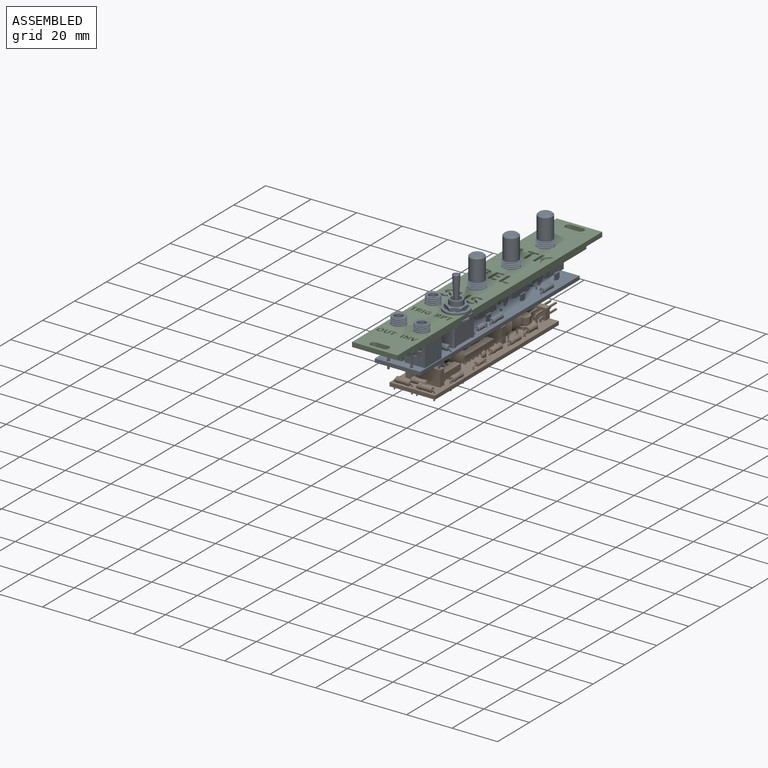
[diagram: assembled view]
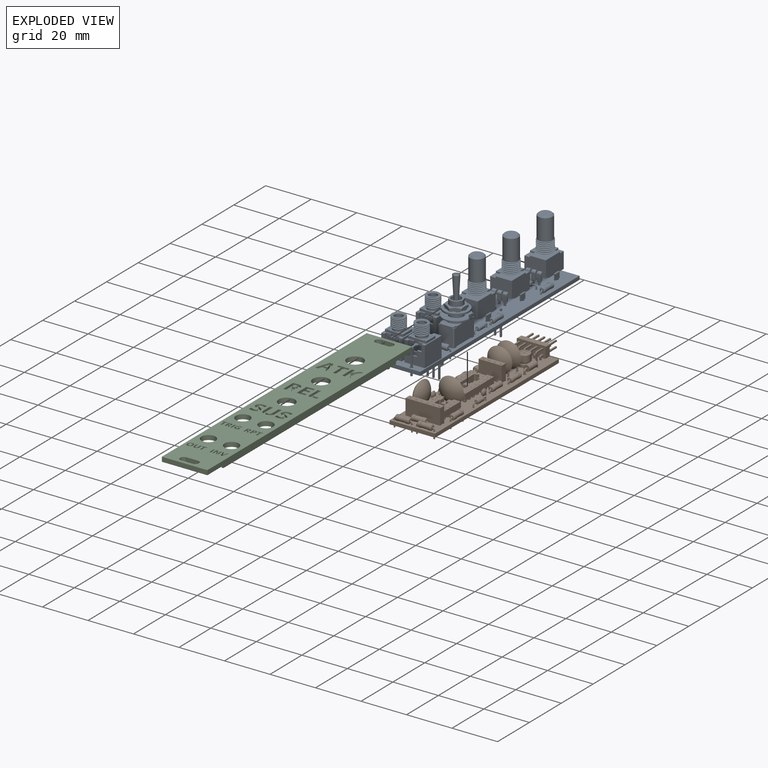
[diagram: exploded view]
GUIDED TOUR — FREECAD ASSEMBLY "ASREnvelope_panel"

This assembly has 3 components, labeled P0..P2 below (a component is one placed body or linked part; the same part can appear more than once), held together by 0 modeled joints plus 2 derived contact edges. A joint is a constraint between two components; its type names the relative motion it leaves free:
  CONTACT — a derived adjacency edge — the two components touch in the source model (clearance under 2% of the assembly's diagonal); it is measured from the geometry, not a modeled constraint.
Axis/direction vectors are unit vectors and 'through' points are millimeter coordinates, both in the assembly's world frame.

MATES
  1. CONTACT "contact_0_1": P0 <-> P1, contact direction (0.000, 0.000, -1.000) through (7.75, -36.36, -3.27) mm (derived from contact, not a modeled constraint)
  2. CONTACT "contact_0_2": P0 <-> P2, contact direction (0.000, -1.000, 0.000) through (12.38, -47.45, 9.97) mm (derived from contact, not a modeled constraint)

ASSEMBLY ORDER
  1. P0 — the base component [order heuristic]
  2. P1 [order heuristic]
  3. P2 [order heuristic]
Order-tag legend:
  [order heuristic] — this assembly is geometrically interlocked (no collision-free removal order exists), so components are listed in mate-graph order; insertion feasibility is not verified.

Of the 3 components, 1 carries a construction recipe — the FreeCAD feature program (sketches with constraints, then the solid features that consume them) that regenerates the part from scratch, quoted from this document or from the linked companion document it references; the rest are supplied as boundary geometry only. The tour below walks the components in assembly order: each is shown spotlighted twice — in the assembled view, then in the exploded view, where a leader line traces a displaced component back to its assembled socket (components that stay in place when exploded have no leader line; saturated green if recipe-attached, orange if geometry-only; every other component desaturated gray) — followed by its recipe or geometry summary and the mates that hold it.
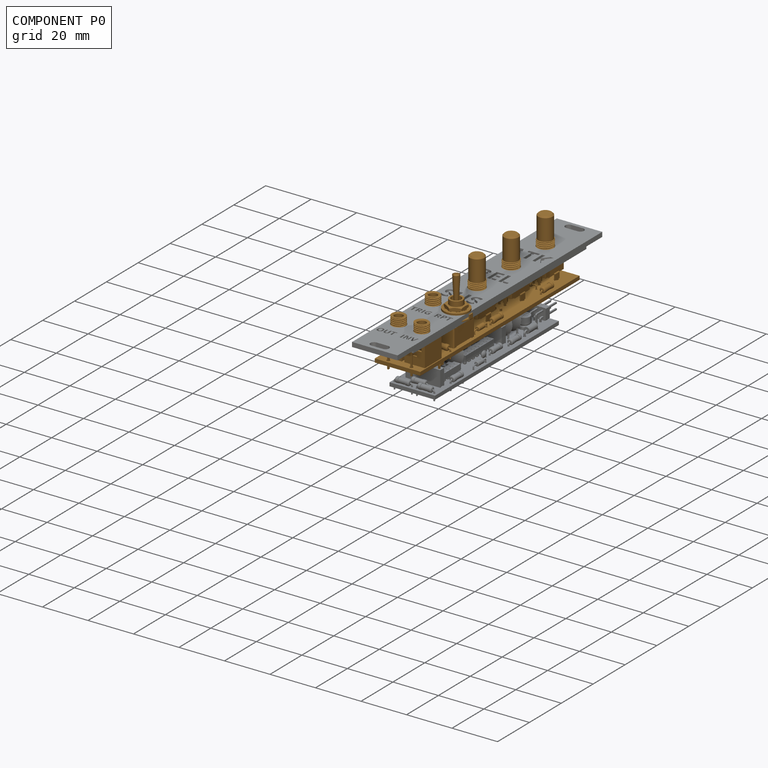
[diagram: component P0 — assembled]
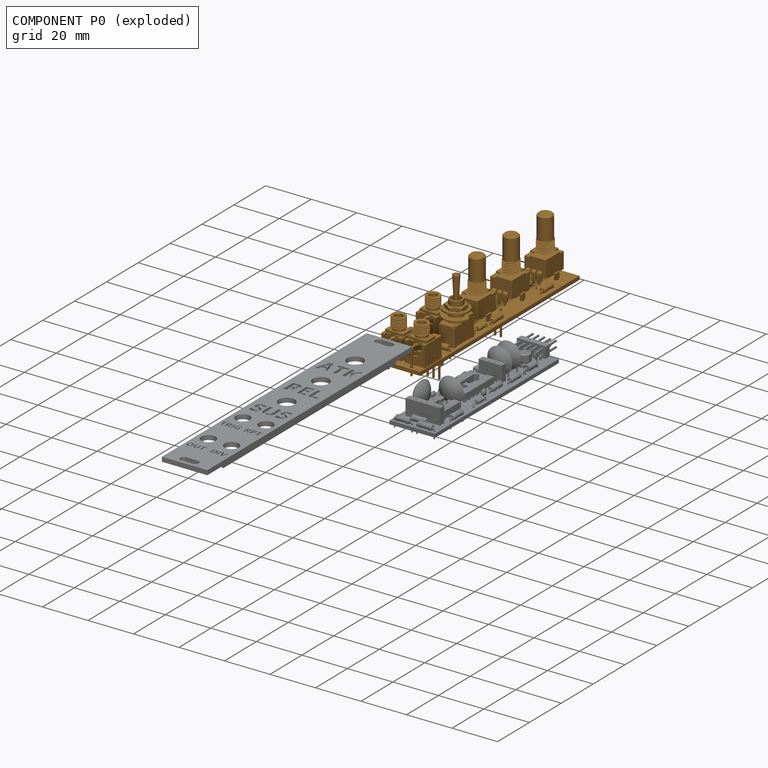
[diagram: component P0 — exploded]
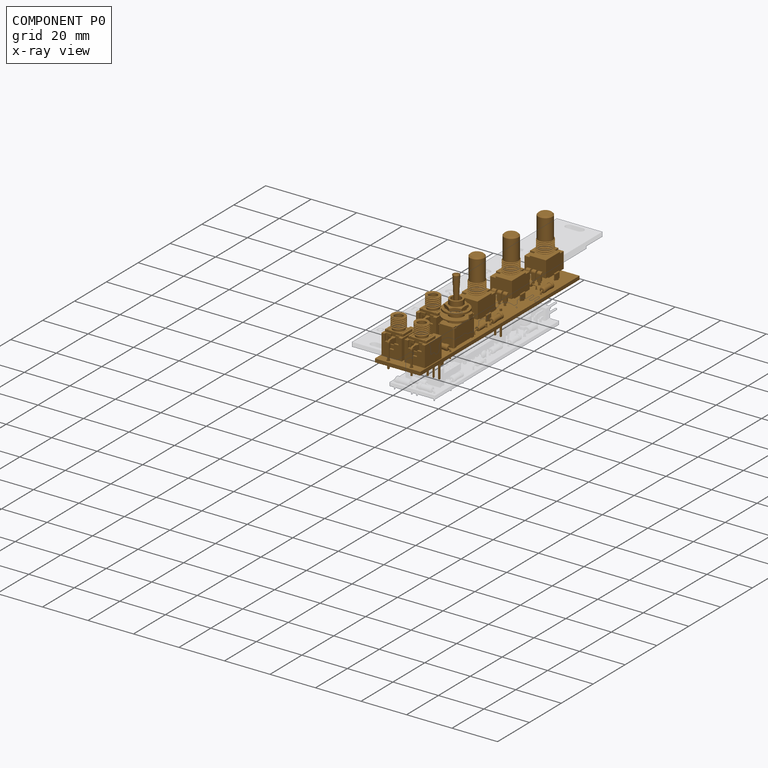
[diagram: component P0 — x-ray view]
COMPONENT P0 — geometry summary ("ASREnvelope_control"; no construction recipe available for this part):
  bounding box: 100.0 x 36.7 x 21.7 mm
  tessellated surface: 257,810 triangles
  volume: 8085 mm^3 (10% of its bounding box)
Held by: resting contact with P1 (derived edge); resting contact with P2 (derived edge).
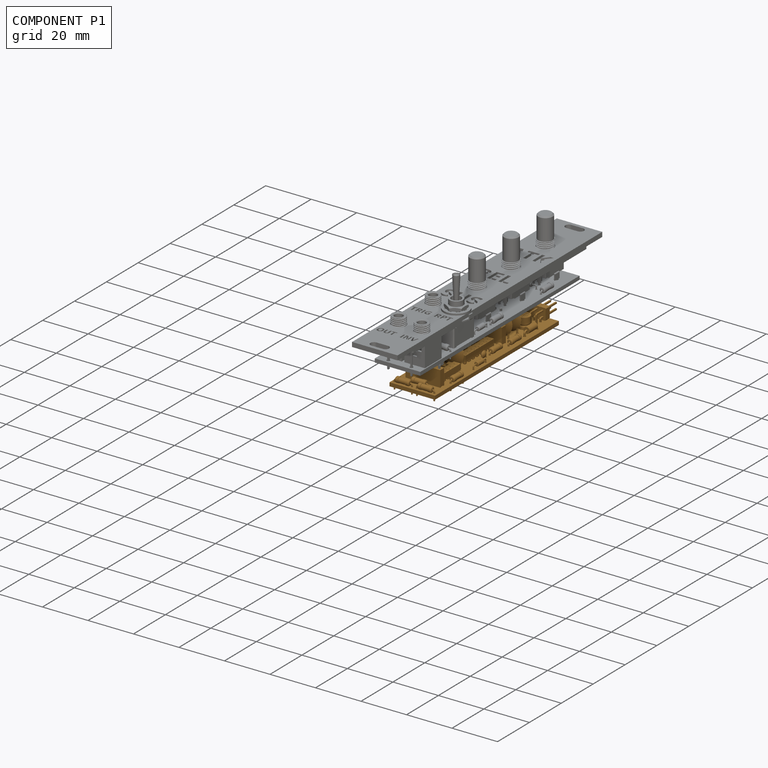
[diagram: component P1 — assembled]
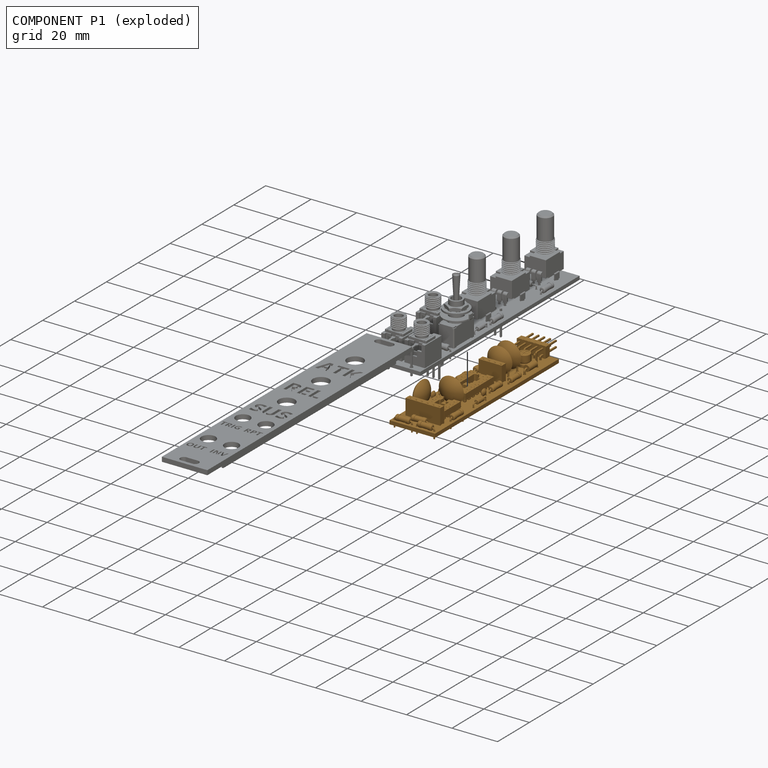
[diagram: component P1 — exploded]
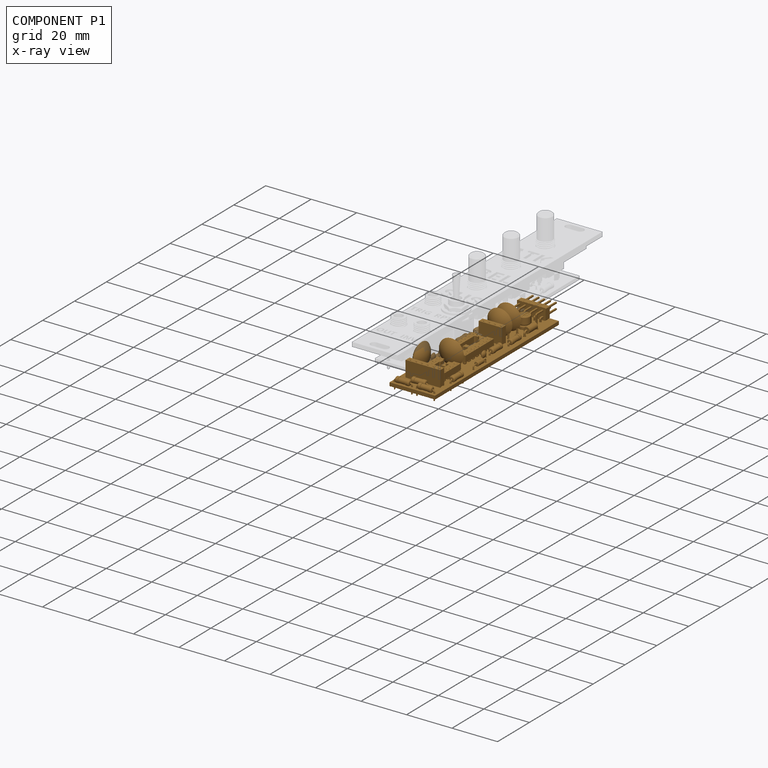
[diagram: component P1 — x-ray view]
COMPONENT P1 — geometry summary ("ASREnvelope_power"; no construction recipe available for this part):
  bounding box: 83.4 x 20.0 x 14.9 mm
  tessellated surface: 360,600 triangles
  volume: 4487 mm^3 (18% of its bounding box)
Held by: resting contact with P0 (derived edge).
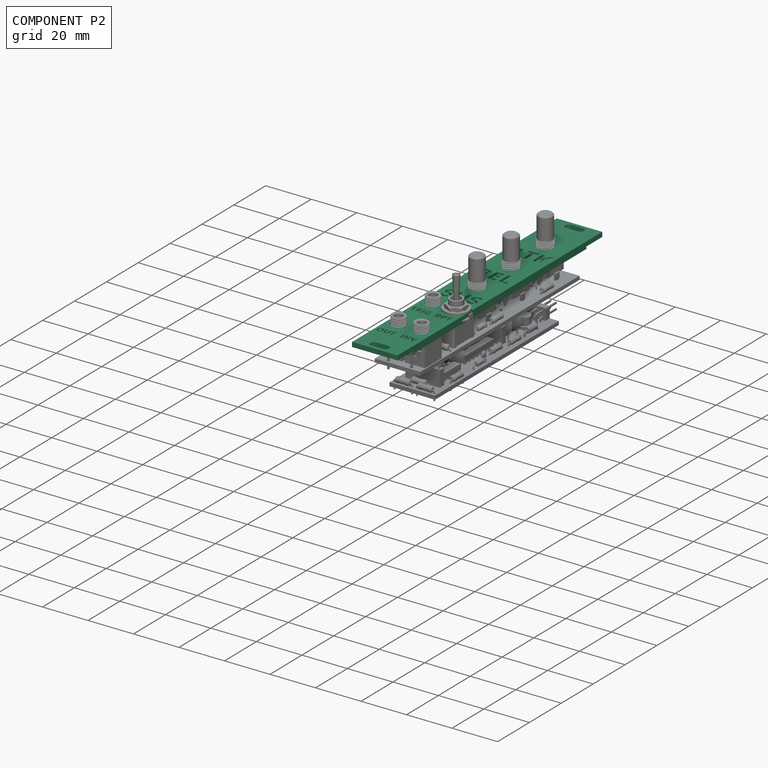
[diagram: component P2 — assembled]
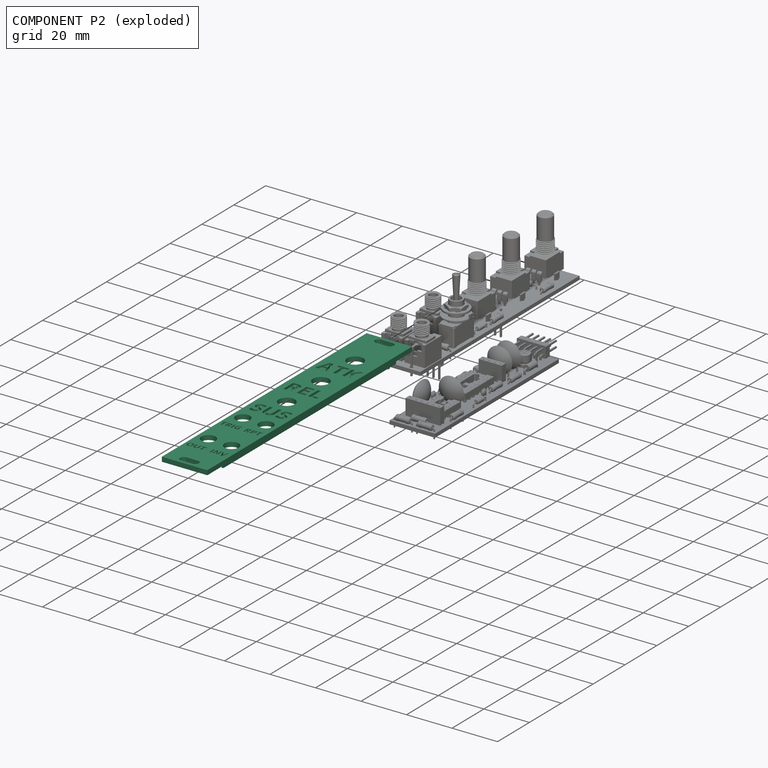
[diagram: component P2 — exploded]
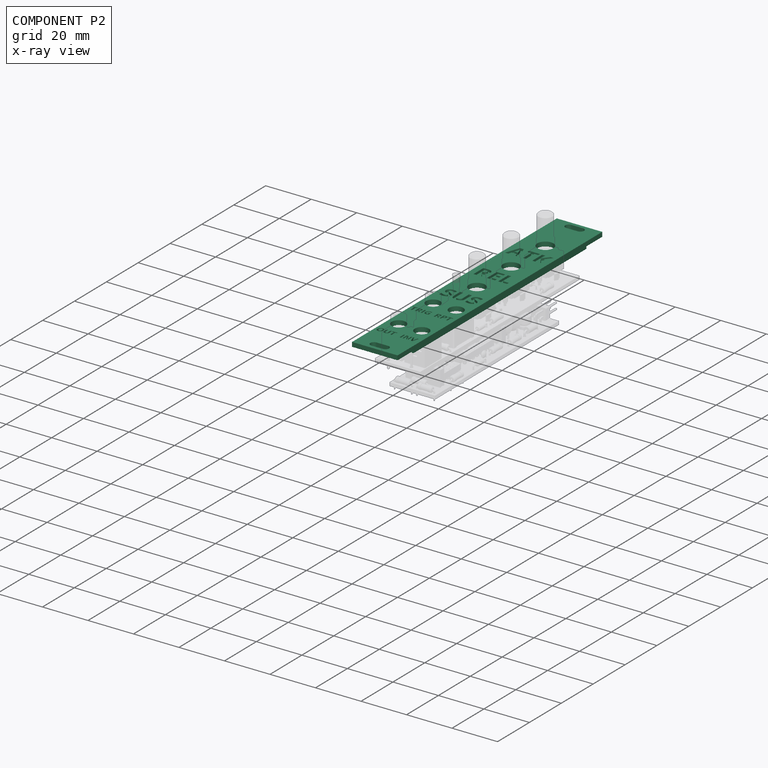
[diagram: component P2 — x-ray view]
COMPONENT P2 — recipe-attached ("Body001", modeled in this document).
Held by: resting contact with P0 (derived edge).
Construction recipe (the document's own serialized feature program — sketch geometry with constraints, then the solid features built on it; lengths are millimeters unless a unit is written):

FEATURE [PartDesign::SubShapeBinder] Binder
  BindCopyOnChange = 0
  BindMode = 0
  ClaimChildren = false
  Context = -> Body [Binder.]
  Fuse = false
  MakeFace = true
  OffsetFill = false
  OffsetIntersection = false
  OffsetJoinType = 0
  OffsetOpenResult = false
  PartialLoad = false
  Relative = true
  Support = -> [Board_d228[Board_Geoms_d228.Pcb_d228.Edge11],ShapeString002]
  _Version = 2
FEATURE [PartDesign::SubShapeBinder] Binder001
  BindCopyOnChange = 0
  BindMode = 0
  ClaimChildren = false
  Context = -> Body [Binder001.]
  Fuse = false
  MakeFace = true
  OffsetFill = false
  OffsetIntersection = false
  OffsetJoinType = 0
  OffsetOpenResult = false
  PartialLoad = false
  Relative = true
  Support = -> [Board_d228[Board_Geoms_d228.Pcb_d228.Edge3]]
  _Version = 2
FEATURE [PartDesign::SubShapeBinder] Binder002
  BindCopyOnChange = 0
  BindMode = 0
  ClaimChildren = false
  Context = -> Body [Binder002.]
  Fuse = false
  MakeFace = true
  OffsetFill = false
  OffsetIntersection = false
  OffsetJoinType = 0
  OffsetOpenResult = false
  PartialLoad = false
  Relative = true
  Support = -> [Board_d228[Board_Geoms_d228.Pcb_d228.Edge9]]
  _Version = 2
FEATURE [Sketcher::SketchObject] Sketch
  ExternalGeometry = -> [Binder001,Binder002,Binder]
  FullyConstrained = true
  MapMode = 5
  Support = -> [XY_Plane014]
  sketch-geometry (19):
    g0: LineSegment StartX=0 StartY=14.25 StartZ=0 EndX=20 EndY=14.25 EndZ=0
    g1: LineSegment StartX=20 StartY=14.25 StartZ=0 EndX=20 EndY=-114.25 EndZ=0
    g2: LineSegment StartX=20 StartY=-114.25 StartZ=0 EndX=0 EndY=-114.25 EndZ=0
    g3: LineSegment StartX=0 StartY=-114.25 StartZ=0 EndX=0 EndY=14.25 EndZ=0
    g4: ArcOfCircle CenterX=7.5 CenterY=-111.15 CenterZ=0 NormalX=0 NormalY=0 NormalZ=1 AngleXU=0 Radius=1.6 StartAngle=1.5708 EndAngle=4.71239
    g5: ArcOfCircle CenterX=12.5 CenterY=-111.15 CenterZ=0 NormalX=0 NormalY=0 NormalZ=1 AngleXU=0 Radius=1.6 StartAngle=4.71239 EndAngle=7.85398
    g6: LineSegment StartX=7.5 StartY=-112.75 StartZ=0 EndX=12.5 EndY=-112.75 EndZ=0
    g7: LineSegment StartX=12.5 StartY=-109.55 StartZ=0 EndX=7.5 EndY=-109.55 EndZ=0
    g8: ArcOfCircle CenterX=7.5 CenterY=11.15 CenterZ=0 NormalX=0 NormalY=0 NormalZ=1 AngleXU=0 Radius=1.6 StartAngle=1.5708 EndAngle=4.71239
    g9: ArcOfCircle CenterX=12.5 CenterY=11.15 CenterZ=0 NormalX=0 NormalY=0 NormalZ=1 AngleXU=0 Radius=1.6 StartAngle=4.71239 EndAngle=7.85398
    g10: LineSegment StartX=7.5 StartY=9.55 StartZ=0 EndX=12.5 EndY=9.55 EndZ=0
    g11: LineSegment StartX=12.5 StartY=12.75 StartZ=0 EndX=7.5 EndY=12.75 EndZ=0
    g12: Circle CenterX=10 CenterY=-7.2 CenterZ=0 NormalX=0 NormalY=0 NormalZ=1 AngleXU=0 Radius=3.55
    g13: Circle CenterX=10 CenterY=-28.65 CenterZ=0 NormalX=0 NormalY=0 NormalZ=1 AngleXU=0 Radius=3.55
    g14: Circle CenterX=10 CenterY=-50.1 CenterZ=0 NormalX=0 NormalY=0 NormalZ=1 AngleXU=0 Radius=3.55
    g15: Circle CenterX=4.92 CenterY=-91.99 CenterZ=0 NormalX=0 NormalY=0 NormalZ=1 AngleXU=0 Radius=3.1
    g16: Circle CenterX=15.08 CenterY=-91.99 CenterZ=0 NormalX=0 NormalY=0 NormalZ=1 AngleXU=0 Radius=3.1
    g17: Circle CenterX=4.92 CenterY=-70.4 CenterZ=0 NormalX=0 NormalY=0 NormalZ=1 AngleXU=0 Radius=3.1
    g18: Circle CenterX=15.08 CenterY=-70.4 CenterZ=0 NormalX=0 NormalY=0 NormalZ=1 AngleXU=0 Radius=3.1
  constraints (53):
    c: Coincident(g0,g1)
    c: Coincident(g1,g2)
    c: Coincident(g2,g3)
    c: Coincident(g3,g0)
    c: Horizontal(g0)
    c: Horizontal(g2)
    c: Vertical(g1)
    c: Vertical(g3)
    c: PointOnObject(g0,g-2)
    c: DistanceY(g1,g1) = 128.5
    c: PointOnObject(g-6,g1)
    c: DistanceY(g2,g-5) = 14.25
    c: Tangent(g4,g6) = -1.5708
    c: Tangent(g6,g5) = -1.5708
    c: Tangent(g5,g7) = -1.5708
    c: Tangent(g7,g4) = -1.5708
    c: Equal(g4,g5)
    c: Horizontal(g6)
    c: DistanceY(g5,g5) = 3.2
    c: DistanceY(g2,g5) = 3.1
    c: DistanceX(g2,g4) = 7.5
    c: DistanceX(g4,g5) = 5
    c: Tangent(g8,g10) = -1.5708
    c: Tangent(g10,g9) = -1.5708
    c: Tangent(g9,g11) = -1.5708
    c: Tangent(g11,g8) = -1.5708
    c: Equal(g8,g9)
    c: Horizontal(g10)
    c: DistanceX(g8,g9) = 5
    c: DistanceY(g9,g9) = 3.2
    c: DistanceX(g0,g8) = 7.5
    c: DistanceY(g8,g0) = 3.1
    c: DistanceX(g0,g12) = 10
    c: DistanceY(g12,g0) = 21.45
    c: Vertical(g12,g13)
    c: Vertical(g13,g14)
    c: DistanceY(g13,g12) = 21.45
    c: DistanceY(g14,g13) = 21.45
    c: Equal(g12,g13)
    c: Equal(g13,g14)
    c: Diameter(g13) = 7.1
    c: Vertical(g18,g16)
    c: Vertical(g17,g15)
    c: Horizontal(g16,g15)
    c: Horizontal(g18,g17)
    c: Equal(g16,g15)
    c: Equal(g15,g17)
    c: Diameter(g16) = 6.2
    c: DistanceX(g15,g16) = 10.16
    c: DistanceY(g15,g17) = 21.59
    c: DistanceY(g-5,g15) = 8.01
    c: DistanceX(g-5,g15) = 4.92
    c: Diameter(g18) = 6.2
FEATURE [PartDesign::SubShapeBinder] Binder004
  BindCopyOnChange = 0
  BindMode = 0
  ClaimChildren = false
  Context = -> Body [Binder004.]
  Fuse = false
  MakeFace = true
  OffsetFill = false
  OffsetIntersection = false
  OffsetJoinType = 0
  OffsetOpenResult = false
  PartialLoad = false
  Relative = true
  Support = -> [Board_d228[Board_Geoms_d228.Pcb_d228.Vertex3]]
  _Version = 2
FEATURE [PartDesign::Pad] Pad
  Direction = (0,0,1)
  Length = 2
  Length2 = 10
  Profile = -> Sketch
  ReferenceAxis = -> Sketch [N_Axis]
  Type = 0
FEATURE [Sketcher::SketchObject] Sketch001
  ExternalGeometry = -> [Pad]
  FullyConstrained = true
  MapMode = 5
  Placement = pos=(0,0,0) rot=(1,0,0;3.14159rad)
  Support = -> [Pad]
  sketch-geometry (8):
    g0: LineSegment StartX=0 StartY=-4.25 StartZ=0 EndX=0.8 EndY=-4.25 EndZ=0
    g1: LineSegment StartX=0.8 StartY=-4.25 StartZ=0 EndX=0.8 EndY=104.25 EndZ=0
    g2: LineSegment StartX=0.8 StartY=104.25 StartZ=0 EndX=0 EndY=104.25 EndZ=0
    g3: LineSegment StartX=0 StartY=104.25 StartZ=0 EndX=0 EndY=-4.25 EndZ=0
    g4: LineSegment StartX=20 StartY=104.25 StartZ=0 EndX=19.2 EndY=104.25 EndZ=0
    g5: LineSegment StartX=19.2 StartY=104.25 StartZ=0 EndX=19.2 EndY=-4.25 EndZ=0
    g6: LineSegment StartX=19.2 StartY=-4.25 StartZ=0 EndX=20 EndY=-4.25 EndZ=0
    g7: LineSegment StartX=20 StartY=-4.25 StartZ=0 EndX=20 EndY=104.25 EndZ=0
  constraints (24):
    c: Coincident(g0,g1)
    c: Coincident(g1,g2)
    c: Coincident(g2,g3)
    c: Coincident(g3,g0)
    c: Horizontal(g0)
    c: Horizontal(g2)
    c: Vertical(g1)
    c: Vertical(g3)
    c: PointOnObject(g0,g-2)
    c: DistanceX(g2,g2) = 0.8
    c: Coincident(g4,g5)
    c: Coincident(g5,g6)
    c: Coincident(g6,g7)
    c: Coincident(g7,g4)
    c: Horizontal(g4)
    c: Horizontal(g6)
    c: Vertical(g5)
    c: Vertical(g7)
    c: DistanceX(g6,g6) = 0.8
    c: DistanceY(g-3,g0) = 10
    c: DistanceY(g-3,g6) = 10
    c: DistanceY(g2,g-4) = 10
    c: DistanceY(g4,g-4) = 10
    c: PointOnObject(g4,g-5)
FEATURE [PartDesign::Pad] Pad001
  BaseFeature = -> Pad
  Direction = (0,0,-1)
  Length = 1
  Length2 = 10
  Profile = -> Sketch001
  ReferenceAxis = -> Sketch001 [N_Axis]
  Type = 0
FEATURE [Part::Part2DObjectPython] ShapeString  label="ATK"  # Draft 2D object (typed FeaturePython)
  FontFile = <userpath>/Desktop/OpenSans-Bold.ttf
  MakeFace = true
  Placement = pos=(1.47,-20.32,1) rot=(0,0,1;0rad)
  Size = 8
  String = ATK
  Tracking = 0
FEATURE [Part::Part2DObjectPython] ShapeString001  label="REL"  # Draft 2D object (typed FeaturePython)
  FontFile = <userpath>/Desktop/OpenSans-Bold.ttf
  MakeFace = true
  Placement = pos=(1.85,-41.77,1) rot=(0,0,1;0rad)
  Size = 8
  String = REL
  Tracking = 0
FEATURE [Part::Part2DObjectPython] ShapeString002  label="SUS"  # Draft 2D object (typed FeaturePython)
  FontFile = <userpath>/Desktop/OpenSans-Bold.ttf
  MakeFace = true
  Placement = pos=(1.92,-63.22,2) rot=(0,0,1;0rad)
  Size = 8
  String = SUS
  Tracking = 0
FEATURE [Part::Part2DObjectPython] ShapeString003  label="TRIG"  # Draft 2D object (typed FeaturePython)
  FontFile = <userpath>/Desktop/OpenSans-Bold.ttf
  MakeFace = true
  Placement = pos=(0.66,-79.56,1) rot=(0,0,1;0rad)
  Size = 3.5
  String = TRIG
  Tracking = 0
FEATURE [Part::Part2DObjectPython] ShapeString004  label="RPT"  # Draft 2D object (typed FeaturePython)
  FontFile = <userpath>/Desktop/OpenSans-Bold.ttf
  MakeFace = true
  Placement = pos=(11.25,-79.56,1) rot=(0,0,1;0rad)
  Size = 3.5
  String = RPT
  Tracking = 0
FEATURE [Part::Part2DObjectPython] ShapeString005  label="OUT"  # Draft 2D object (typed FeaturePython)
  FontFile = <userpath>/Desktop/OpenSans-Bold.ttf
  MakeFace = true
  Placement = pos=(0.84,-101.15,1) rot=(0,0,1;0rad)
  Size = 3.5
  String = OUT
  Tracking = 0
FEATURE [Part::Part2DObjectPython] ShapeString006  label="INV"  # Draft 2D object (typed FeaturePython)
  FontFile = <userpath>/Desktop/OpenSans-Bold.ttf
  MakeFace = true
  Placement = pos=(11.36,-101.15,1) rot=(0,0,1;0rad)
  Size = 3.5
  String = INV
  Tracking = 0
FEATURE [PartDesign::SubShapeBinder] Binder003
  BindCopyOnChange = 0
  BindMode = 0
  ClaimChildren = false
  Context = -> Body [Binder003.]
  Fuse = false
  MakeFace = true
  OffsetFill = false
  OffsetIntersection = false
  OffsetJoinType = 0
  OffsetOpenResult = false
  PartialLoad = false
  Relative = true
  Support = -> [Board_d228[Board_Geoms_d228.Pcb_d228.Edge6]]
  _Version = 2
FEATURE [PartDesign::Pocket] Pocket
  BaseFeature = -> Pad001
  Direction = (0,0,-1)
  Length = 1
  Length2 = 5
  Profile = -> ShapeString
  ReferenceAxis = -> ShapeString [N_Axis]
  Reversed = true
  Type = 0
FEATURE [PartDesign::Pocket] Pocket001
  BaseFeature = -> Pocket
  Direction = (0,0,-1)
  Length = 1
  Length2 = 5
  Profile = -> ShapeString001
  ReferenceAxis = -> ShapeString001 [N_Axis]
  Reversed = true
  Type = 0
FEATURE [PartDesign::Pocket] Pocket002
  BaseFeature = -> Pocket001
  Direction = (0,0,-1)
  Length = 1
  Length2 = 5
  Profile = -> ShapeString002
  ReferenceAxis = -> ShapeString002 [N_Axis]
  Type = 0
FEATURE [PartDesign::Pocket] Pocket003
  BaseFeature = -> Pocket002
  Direction = (0,0,-1)
  Length = 1
  Length2 = 5
  Profile = -> ShapeString003
  ReferenceAxis = -> ShapeString003 [N_Axis]
  Reversed = true
  Type = 0
FEATURE [PartDesign::Pocket] Pocket004
  BaseFeature = -> Pocket003
  Direction = (0,0,-1)
  Length = 1
  Length2 = 5
  Profile = -> ShapeString004
  ReferenceAxis = -> ShapeString004 [N_Axis]
  Reversed = true
  Type = 0
FEATURE [PartDesign::Pocket] Pocket005
  BaseFeature = -> Pocket004
  Direction = (0,0,-1)
  Length = 1
  Length2 = 5
  Profile = -> ShapeString005
  ReferenceAxis = -> ShapeString005 [N_Axis]
  Reversed = true
  Type = 0
FEATURE [PartDesign::Pocket] Pocket006
  BaseFeature = -> Pocket005
  Direction = (0,0,-1)
  Length = 1
  Length2 = 5
  Profile = -> ShapeString006
  ReferenceAxis = -> ShapeString006 [N_Axis]
  Reversed = true
  Type = 0
FEATURE [PartDesign::Body] Body  label="Body001"
  Group = -> [Binder,Binder001,Binder002,Binder003,Sketch,Binder004,Pad,Sketch001,Pad001,ShapeString,ShapeString001,ShapeString003,ShapeString004,ShapeString006,ShapeString002,ShapeString005,Pocket,Pocket001,Pocket002,Pocket003,Pocket004,Pocket005,Pocket006]
  Origin = -> Origin014
  Placement = pos=(0,0,10) rot=(0,0,1;0rad)
  Tip = -> Pocket006
PROVENANCE & LICENSES
Assembly and component geometry: a FreeCAD (.FCStd) document from a public repository crawl; components, placements and joints were extracted with FreeCAD and each solid tessellated.
Construction recipes: the document's own serialized feature recipes (and, for linked parts, the recipes of companion documents from the same project).
License: as declared in the source repository (recorded in the dataset sidecar).
Joints: native FreeCAD joints and A2plus constraints are mapped to standard mate types; edges marked 'derived from contact' connect touching components and are measured from the geometry, not modeled.
Verification: 1 of this assembly's 3 components carries a construction recipe (1 from this document itself); the rest are geometry-only. Every component's tessellation passed the extraction mesh gates (mesh-volume checksum against the B-rep where available, bounding-box inflation <= 2%).
Renders: orthographic iso camera (az 35 / el 25); the floor grid conveys scale (grid pitch printed in each image; no ruler). In the exploded view each component is displaced by its stored offset vector: the offsets alone carry the explosion direction (mate normal/axis signs are not orientation cues and do not encode it), and separation distances are assigned per mate-chain, not proportionally to assembly-order depth.
